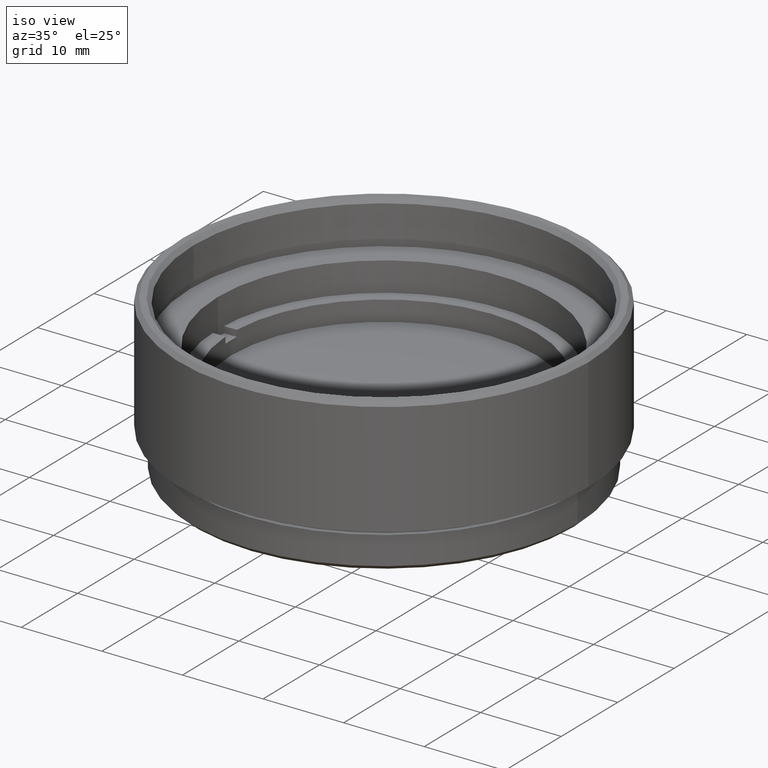
[diagram: clean part render]
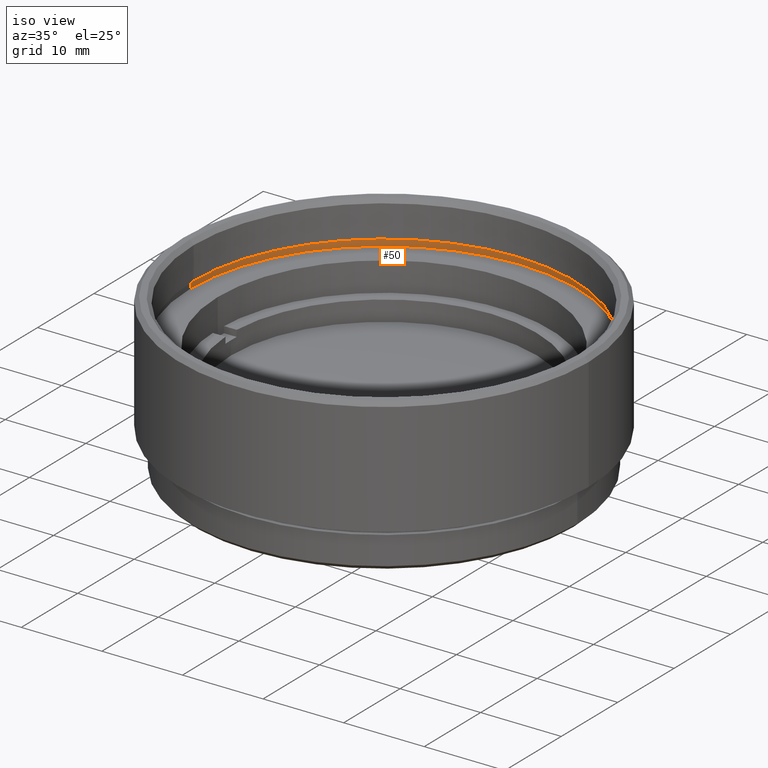
[diagram: same view with one face highlighted and labeled with its STEP entity id]
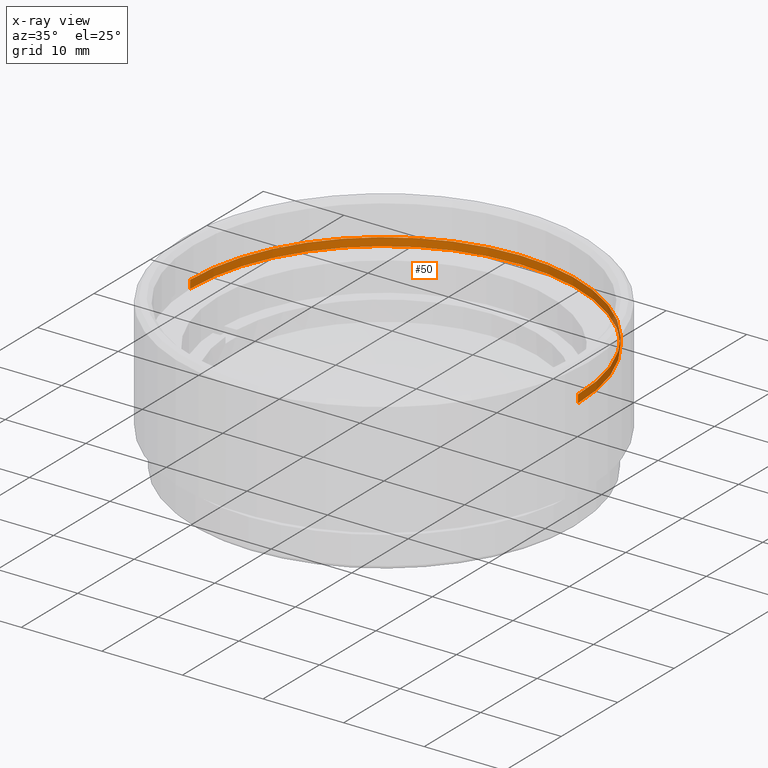
[diagram: x-ray of the same camera — body ghosted, the highlighted face saturated]
A machine part, iso view. The second image highlights one B-rep face of the part: STEP entity #50.
The next image is the same camera in x-ray: the body ghosted, the highlighted face saturated — about 2% of this face is hidden behind the body in this view.
In plain terms, the highlighted cylindrical surface (partial cylindrical patch) has radius 24.05 mm, axis along (0, 0, -1).
Its self-contained STEP definition (entity closure, byte-faithful):
#40 = DIRECTION ( 'NONE',  ( 0.000000000000000000, 0.000000000000000000, -1.000000000000000000 ) ) ;
#50 = ADVANCED_FACE ( 'NONE', ( #1395 ), #1695, .F. ) ;
#52 = EDGE_CURVE ( 'NONE', #312, #1763, #933, .T. ) ;
#98 = EDGE_CURVE ( 'NONE', #310, #937, #1286, .T. ) ;
#240 = EDGE_CURVE ( 'NONE', #937, #1763, #1877, .T. ) ;
#257 = EDGE_CURVE ( 'NONE', #310, #312, #1574, .T. ) ;
#292 = CARTESIAN_POINT ( 'NONE',  ( 0.000000000000000000, 0.000000000000000000, 15.00000000000000000 ) ) ;
#310 = VERTEX_POINT ( 'NONE', #950 ) ;
#312 = VERTEX_POINT ( 'NONE', #659 ) ;
#324 = CARTESIAN_POINT ( 'NONE',  ( 0.000000000000000000, 0.000000000000000000, 15.00000000000000000 ) ) ;
#530 = CARTESIAN_POINT ( 'NONE',  ( -24.05000000000000071, 0.000000000000000000, 15.00000000000000000 ) ) ;
#545 = DIRECTION ( 'NONE',  ( 1.000000000000000000, 0.000000000000000000, 0.000000000000000000 ) ) ;
#659 = CARTESIAN_POINT ( 'NONE',  ( 24.05000000000000071, 2.945275551949384573E-15, 14.00000000000000000 ) ) ;
#840 = DIRECTION ( 'NONE',  ( 0.000000000000000000, 0.000000000000000000, -1.000000000000000000 ) ) ;
#868 = CARTESIAN_POINT ( 'NONE',  ( 0.000000000000000000, 0.000000000000000000, 14.00000000000000000 ) ) ;
#933 = CIRCLE ( 'NONE', #1187, 24.05000000000000071 ) ;
#937 = VERTEX_POINT ( 'NONE', #530 ) ;
#950 = CARTESIAN_POINT ( 'NONE',  ( 24.05000000000000071, 2.945275551949384573E-15, 15.00000000000000000 ) ) ;
#982 = CARTESIAN_POINT ( 'NONE',  ( -24.05000000000000071, 0.000000000000000000, 15.00000000000000000 ) ) ;
#1176 = VECTOR ( 'NONE', #1424, 1000.000000000000000 ) ;
#1187 = AXIS2_PLACEMENT_3D ( 'NONE', #868, #1311, #545 ) ;
#1236 = VECTOR ( 'NONE', #840, 1000.000000000000000 ) ;
#1286 = CIRCLE ( 'NONE', #1681, 24.05000000000000071 ) ;
#1291 = DIRECTION ( 'NONE',  ( 0.000000000000000000, 0.000000000000000000, 1.000000000000000000 ) ) ;
#1311 = DIRECTION ( 'NONE',  ( 0.000000000000000000, 0.000000000000000000, 1.000000000000000000 ) ) ;
#1395 = FACE_OUTER_BOUND ( 'NONE', #1447, .T. ) ;
#1424 = DIRECTION ( 'NONE',  ( 0.000000000000000000, 0.000000000000000000, -1.000000000000000000 ) ) ;
#1447 = EDGE_LOOP ( 'NONE', ( #1678, #1682, #1843, #1675 ) ) ;
#1533 = AXIS2_PLACEMENT_3D ( 'NONE', #324, #40, #1592 ) ;
#1574 = LINE ( 'NONE', #1596, #1176 ) ;
#1592 = DIRECTION ( 'NONE',  ( -1.000000000000000000, 0.000000000000000000, 0.000000000000000000 ) ) ;
#1596 = CARTESIAN_POINT ( 'NONE',  ( 24.05000000000000071, 2.945275551949384573E-15, 15.00000000000000000 ) ) ;
#1675 = ORIENTED_EDGE ( 'NONE', *, *, #52, .F. ) ;
#1678 = ORIENTED_EDGE ( 'NONE', *, *, #257, .F. ) ;
#1681 = AXIS2_PLACEMENT_3D ( 'NONE', #292, #1291, #1906 ) ;
#1682 = ORIENTED_EDGE ( 'NONE', *, *, #98, .T. ) ;
#1695 = CYLINDRICAL_SURFACE ( 'NONE', #1533, 24.05000000000000071 ) ;
#1761 = CARTESIAN_POINT ( 'NONE',  ( -24.05000000000000071, 0.000000000000000000, 14.00000000000000000 ) ) ;
#1763 = VERTEX_POINT ( 'NONE', #1761 ) ;
#1843 = ORIENTED_EDGE ( 'NONE', *, *, #240, .T. ) ;
#1877 = LINE ( 'NONE', #982, #1236 ) ;
#1906 = DIRECTION ( 'NONE',  ( 1.000000000000000000, 0.000000000000000000, 0.000000000000000000 ) ) ;